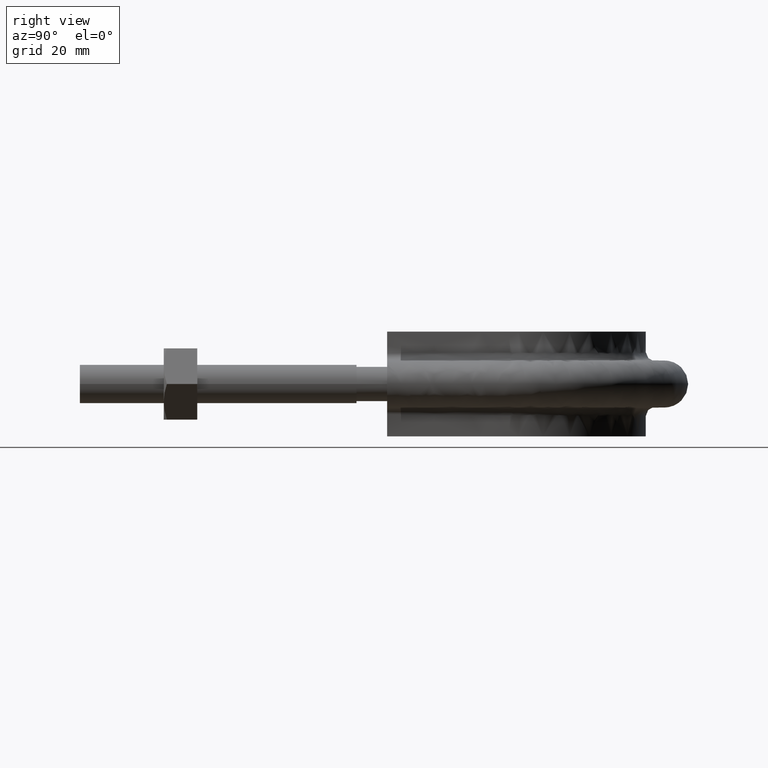
[diagram: clean part render]
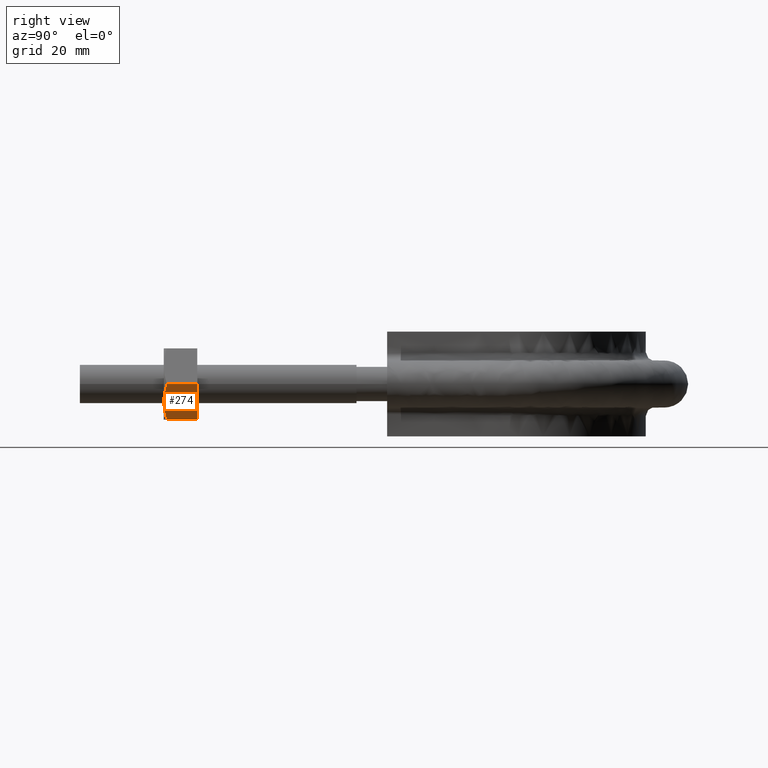
[diagram: same view with one face highlighted and labeled with its STEP entity id]
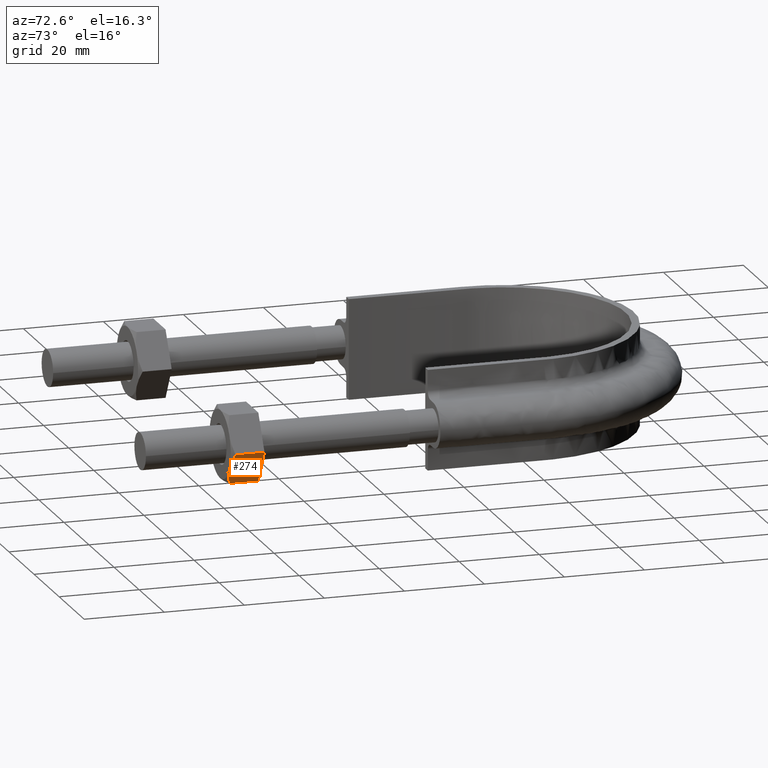
[diagram: same view with one face highlighted and labeled with its STEP entity id]
A machine part, right view. The second image highlights one B-rep face of the part: STEP entity #274.
A second angle (auxiliary view) of the same face is appended — the face is thin or edge-on in the first view.
In plain terms, the highlighted planar face has unit normal (-0.866, 0, 0.5).
Its self-contained STEP definition (entity closure, byte-faithful):
#274 = ADVANCED_FACE( '', ( #422 ), #423, .F. );
#422 = FACE_OUTER_BOUND( '', #1419, .T. );
#423 = PLANE( '', #1420 );
#1419 = EDGE_LOOP( '', ( #1847, #1848, #1849, #1850, #1851 ) );
#1420 = AXIS2_PLACEMENT_3D( '', #1852, #1853, #1854 );
#1847 = ORIENTED_EDGE( '', *, *, #2106, .F. );
#1848 = ORIENTED_EDGE( '', *, *, #2113, .F. );
#1849 = ORIENTED_EDGE( '', *, *, #2114, .F. );
#1850 = ORIENTED_EDGE( '', *, *, #2115, .F. );
#1851 = ORIENTED_EDGE( '', *, *, #2116, .F. );
#1852 = CARTESIAN_POINT( '', ( 46.8149545762236, 27.9999999999964, 3.85431064234970E-012 ) );
#1853 = DIRECTION( '', ( -0.866025403784635, 2.42723201254790E-016, 0.499999999999660 ) );
#1854 = DIRECTION( '', ( 0.499999999999660, -6.94336247798418E-017, 0.866025403784635 ) );
#2106 = EDGE_CURVE( '', #2324, #2320, #2326, .T. );
#2113 = EDGE_CURVE( '', #2338, #2324, #2339, .T. );
#2114 = EDGE_CURVE( '', #2340, #2338, #2341, .F. );
#2115 = EDGE_CURVE( '', #2342, #2340, #2343, .T. );
#2116 = EDGE_CURVE( '', #2320, #2342, #2344, .T. );
#2320 = VERTEX_POINT( '', #2903 );
#2324 = VERTEX_POINT( '', #2912 );
#2326 = B_SPLINE_CURVE_WITH_KNOTS( '', 3, ( #2914, #2915, #2916, #2917, #2918, #2919, #2920, #2921 ), .UNSPECIFIED., .F., .F., ( 4, 2, 2, 4 ), ( 0.00493506423428099, 0.00616384870526321, 0.00739263317624544, 0.00985020211820987 ), .UNSPECIFIED. );
#2338 = VERTEX_POINT( '', #2933 );
#2339 = B_SPLINE_CURVE_WITH_KNOTS( '', 3, ( #2934, #2935, #2936, #2937, #2938, #2939 ), .UNSPECIFIED., .F., .F., ( 4, 2, 4 ), ( 4.83064900409291E-007, 0.00246777364959070, 0.00493506423428099 ), .UNSPECIFIED. );
#2340 = VERTEX_POINT( '', #2940 );
#2341 = LINE( '', #2941, #2942 );
#2342 = VERTEX_POINT( '', #2943 );
#2343 = LINE( '', #2944, #2945 );
#2344 = LINE( '', #2946, #2947 );
#2903 = CARTESIAN_POINT( '', ( 46.7999656118192, 20.7505553499429, -0.0259616478975329 ) );
#2912 = CARTESIAN_POINT( '', ( 44.3612159321694, 19.9999999999964, -4.24999999999711 ) );
#2914 = CARTESIAN_POINT( '', ( 44.3612159321694, 19.9999999999964, -4.24999999999711 ) );
#2915 = CARTESIAN_POINT( '', ( 44.5680704037759, 19.9999999999964, -3.89171754540144 ) );
#2916 = CARTESIAN_POINT( '', ( 44.7759593948829, 20.0177112081727, -3.53164325046971 ) );
#2917 = CARTESIAN_POINT( '', ( 45.1872159206800, 20.0863021936176, -2.81932605284414 ) );
#2918 = CARTESIAN_POINT( '', ( 45.3914770990602, 20.1371116504158, -2.46553531387539 ) );
#2919 = CARTESIAN_POINT( '', ( 46.0006504950018, 20.3331494013877, -1.41041604148434 ) );
#2920 = CARTESIAN_POINT( '', ( 46.4019659647126, 20.5218253127319, -0.715317258081186 ) );
#2921 = CARTESIAN_POINT( '', ( 46.7999656118192, 20.7505553499429, -0.0259616478975288 ) );
#2933 = CARTESIAN_POINT( '', ( 41.9224662525196, 20.7505553499429, -8.47403835209669 ) );
#2934 = CARTESIAN_POINT( '', ( 41.9224662525196, 20.7505553499429, -8.47403835209669 ) );
#2935 = CARTESIAN_POINT( '', ( 42.3215186168002, 20.5212203171241, -7.78285938228160 ) );
#2936 = CARTESIAN_POINT( '', ( 42.7234530850419, 20.3324525365404, -7.08668846197321 ) );
#2937 = CARTESIAN_POINT( '', ( 43.5355986234420, 20.0714148540550, -5.68001112632257 ) );
#2938 = CARTESIAN_POINT( '', ( 43.9458704405488, 19.9999999999964, -4.96939949417938 ) );
#2939 = CARTESIAN_POINT( '', ( 44.3612159321694, 19.9999999999964, -4.24999999999711 ) );
#2940 = CARTESIAN_POINT( '', ( 41.9224662525196, 27.9999999999964, -8.47403835209668 ) );
#2941 = CARTESIAN_POINT( '', ( 41.9224662525196, 27.9999999999964, -8.47403835209669 ) );
#2942 = VECTOR( '', #3248, 1000.00000000000 );
#2943 = CARTESIAN_POINT( '', ( 46.7999656118192, 27.9999999999964, -0.0259616478975359 ) );
#2944 = CARTESIAN_POINT( '', ( 46.8112159321677, 27.9999999999964, -0.00647552145240031 ) );
#2945 = VECTOR( '', #3249, 1000.00000000000 );
#2946 = CARTESIAN_POINT( '', ( 46.7999656118192, 27.9999999999964, -0.0259616478975350 ) );
#2947 = VECTOR( '', #3250, 1000.00000000000 );
#3248 = DIRECTION( '', ( 2.44921270764476E-016, 1.00000000000000, -6.12303176911189E-017 ) );
#3249 = DIRECTION( '', ( -0.499999999999660, 6.94336247798418E-017, -0.866025403784635 ) );
#3250 = DIRECTION( '', ( 2.44921270764476E-016, 1.00000000000000, -6.12303176911189E-017 ) );